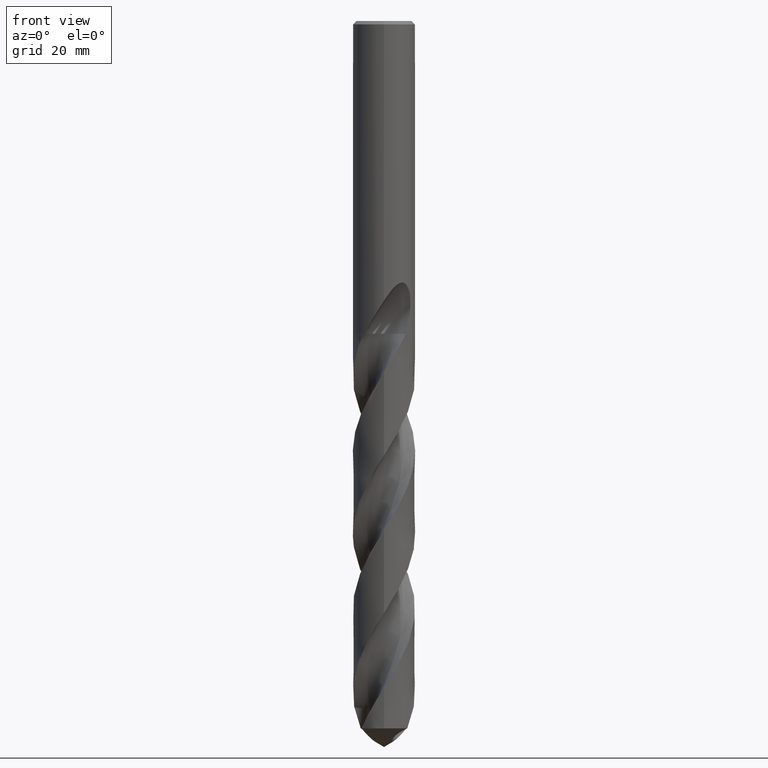
[diagram: clean part render]
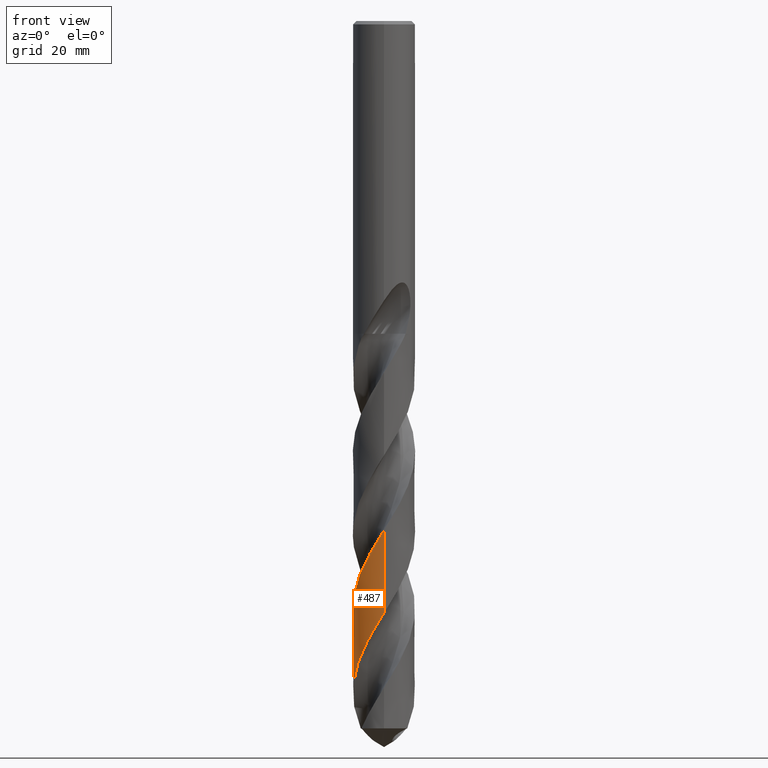
[diagram: same view with one face highlighted and labeled with its STEP entity id]
A machine part, front view. The second image highlights one B-rep face of the part: STEP entity #487.
In plain terms, the highlighted conical surface has half-angle 0 deg.
Its self-contained STEP definition (entity closure, byte-faithful):
#303=EDGE_CURVE('',#431,#465,#783,.T.);
#343=EDGE_CURVE('',#397,#647,#825,.T.);
#355=VERTEX_POINT('',#838);
#397=VERTEX_POINT('',#884);
#431=VERTEX_POINT('',#922);
#435=EDGE_CURVE('',#431,#355,#926,.T.);
#465=VERTEX_POINT('',#959);
#487=ADVANCED_FACE('',(#982),#983,.T.);
#491=EDGE_CURVE('',#647,#355,#987,.T.);
#595=EDGE_CURVE('',#465,#397,#1103,.T.);
#647=VERTEX_POINT('',#1158);
#783=B_SPLINE_CURVE_WITH_KNOTS('',3,(#1532,#1533,#1534,#1535,#1536,#1537,#1538,#1539,#1540,#1541,#1542,#1543,#1544,#1545,#1546,#1547,#1548,#1549,#1550,#1551,#1552,#1553,#1554,#1555,#1556,#1557,#1558,#1559,#1560,#1561,#1562,#1563,#1564,#1565,#1566,#1567,#1568,#1569,#1570,#1571,#1572,#1573,#1574,#1575,#1576,#1577,#1578,#1579,#1580,#1581,#1582,#1583,#1584,#1585,#1586,#1587,#1588,#1589,#1590,#1591,#1592,#1593,#1594,#1595,#1596,#1597,#1598,#1599,#1600,#1601,#1602,#1603,#1604,#1605,#1606,#1607,#1608,#1609,#1610,#1611,#1612,#1613,#1614,#1615,#1616,#1617,#1618,#1619,#1620,#1621,#1622,#1623,#1624,#1625,#1626,#1627,#1628,#1629,#1630,#1631,#1632,#1633,#1634,#1635,#1636,#1637,#1638,#1639,#1640,#1641,#1642,#1643,#1644,#1645,#1646,#1647,#1648,#1649,#1650,#1651,#1652,#1653,#1654,#1655,#1656,#1657,#1658,#1659,#1660,#1661,#1662,#1663,#1664,#1665,#1666,#1667,#1668,#1669,#1670,#1671,#1672,#1673,#1674,#1675,#1676,#1677,#1678,#1679,#1680,#1681,#1682,#1683,#1684,#1685,#1686,#1687,#1688,#1689),.UNSPECIFIED.,.F.,.F.,(4,2,2,2,2,2,2,2,2,2,2,2,2,2,2,2,2,2,2,2,2,2,2,2,2,2,2,2,2,2,2,2,2,2,2,2,2,2,2,2,2,2,2,2,2,2,2,2,2,2,2,2,2,2,2,2,2,2,2,2,2,2,2,2,2,2,2,2,2,2,2,2,2,2,2,2,2,2,4),(0.0,1.77031661090371,2.20791597773964,5.46100718075468,5.57044829929917,7.32849604555577,8.21140103210814,9.97065885477952,11.6071752720234,14.1226464649664,15.31621813268,16.5735950531152,18.3084243680479,19.2434012358815,20.0001717011208,21.7072015279349,22.6634918575135,23.6807614741309,25.4434496202704,26.3267084186185,27.2041087133704,28.9661795445309,29.8492452323305,30.7266224060813,32.4882431680947,33.3711840762653,34.2486498042787,36.0101214156496,36.892946279999,37.7703157798834,39.5139284679548,40.4448355015305,41.3059487882303,44.316967328908,44.4245802771193,46.3211489845122,47.2274198363686,48.4817298673622,50.2674907124125,52.0301826040099,53.8102566076103,56.3292907574294,57.5918130280833,58.8506014418418,60.4711646466708,61.4273737591509,62.6822182834488,64.1963671751367,66.2754502045075,67.7055193087533,69.8151690289709,72.5190421363892,72.8154928816799,75.807993218345,76.6769931419695,78.4105082906779,80.3379462849762,81.8348020701586,83.8748824224301,85.5828402117059,86.399645842771,87.1486253097015,89.974672399131,90.5578191727638,92.2678940546003,93.0940816516135,94.9809087607285,97.9964083987883,102.310449342615,102.894356094695,103.735547238377,104.864527070445,105.581425084975,106.713919195996,107.578966176245,108.522563320781,110.093092980839,112.03798820592,117.056056201774),.UNSPECIFIED.);
#825=B_SPLINE_CURVE_WITH_KNOTS('',3,(#1955,#1956,#1957,#1958,#1959,#1960,#1961,#1962,#1963,#1964,#1965,#1966,#1967,#1968,#1969,#1970,#1971,#1972,#1973,#1974,#1975,#1976,#1977,#1978,#1979,#1980,#1981,#1982,#1983,#1984,#1985,#1986,#1987,#1988,#1989,#1990,#1991,#1992,#1993,#1994,#1995,#1996,#1997,#1998,#1999,#2000,#2001,#2002,#2003,#2004,#2005,#2006,#2007,#2008,#2009,#2010,#2011,#2012,#2013,#2014,#2015,#2016,#2017,#2018,#2019,#2020,#2021,#2022,#2023,#2024,#2025,#2026,#2027,#2028,#2029,#2030,#2031,#2032,#2033,#2034,#2035,#2036,#2037,#2038,#2039,#2040,#2041,#2042,#2043,#2044,#2045,#2046,#2047,#2048,#2049,#2050,#2051,#2052,#2053,#2054,#2055,#2056,#2057,#2058,#2059,#2060,#2061,#2062,#2063,#2064,#2065,#2066,#2067,#2068,#2069,#2070,#2071,#2072,#2073,#2074,#2075,#2076,#2077,#2078,#2079,#2080,#2081,#2082,#2083,#2084,#2085,#2086,#2087,#2088,#2089,#2090,#2091,#2092,#2093,#2094,#2095,#2096,#2097,#2098,#2099,#2100,#2101,#2102),.UNSPECIFIED.,.F.,.F.,(4,2,2,2,2,2,2,2,2,2,2,2,2,2,2,2,2,2,2,2,2,2,2,2,2,2,2,2,2,2,2,2,2,2,2,2,2,2,2,2,2,2,2,2,2,2,2,2,2,2,2,2,2,2,2,2,2,2,2,2,2,2,2,2,2,2,2,2,2,2,2,2,2,4),(0.0,0.361278859706694,0.51155579911378,0.572866162007056,0.614029059597023,0.682420343841701,1.57952066791953,1.84040718704467,1.99265953912856,2.12832221649181,2.29960421990024,2.48533632954587,2.80173898240548,3.84234106031695,4.39947393872738,4.92203250541809,5.45622284913372,8.05018007752597,9.12214029881324,13.6947303622383,14.1022155943221,15.8223417074524,18.2890869499448,19.5146255082088,20.1289691792168,21.3383131196243,23.7576795030091,24.8346879347643,27.2568311728865,27.8949781663482,29.8365769518536,30.4509064145506,31.6601105468229,34.0799109792505,35.1506316992267,37.5721562878431,38.2102082316801,40.1449359744086,40.7592649152998,41.9688717537168,44.3882183249406,45.4600693502129,47.880859775732,48.9299642243294,51.3529305569809,51.9908173376903,53.9712779754157,56.422205483029,57.6512901963238,60.0879100926499,61.3193998843844,62.5325175381007,64.9123121213484,66.0636792997669,68.4830099116609,69.5462326793949,71.9677321637822,72.6055190299489,74.565922188644,77.0183007208763,78.2468491877113,80.6845193497761,81.9154685195219,83.1299611963917,85.4437874189101,86.6532064265412,88.9244899026741,89.9238471716171,91.8016993168094,93.4634324324232,96.348504083274,96.4164152290568,98.5837894684428,105.146051238619),.UNSPECIFIED.);
#838=CARTESIAN_POINT('',(-8.88951325003088E-016,7.25,-164.64376051205));
#884=CARTESIAN_POINT('',(1.6430572421356E-014,-7.24994974277336,-118.485633632378));
#922=CARTESIAN_POINT('',(-5.41990999758816,4.81529600523622,-164.64376051205));
#926=CIRCLE('',#3111,7.25);
#959=CARTESIAN_POINT('',(-4.88570836258464E-015,-7.24997079218865,-137.818208198195));
#982=FACE_OUTER_BOUND('',#3246,.T.);
#983=CONICAL_SURFACE('',#3247,7.24995,1.08880559160692E-006);
#987=LINE('',#3254,#3255);
#1103=LINE('',#5701,#5702);
#1158=CARTESIAN_POINT('',(-2.84661569335026E-013,7.24998968622701,-155.171203519788));
#1532=CARTESIAN_POINT('',(-5.41990999758821,4.81529600523614,-164.64376051205));
#1533=CARTESIAN_POINT('',(-5.62699327304503,4.58221029904842,-164.142749419002));
#1534=CARTESIAN_POINT('',(-5.81847945481887,4.33639775600503,-163.642954985826));
#1535=CARTESIAN_POINT('',(-6.03655625538813,4.01601333732255,-163.01729189605));
#1536=CARTESIAN_POINT('',(-6.07873563781129,3.95187998592214,-162.893228652834));
#1537=CARTESIAN_POINT('',(-6.42635111266323,3.40456690927933,-161.846719184443));
#1538=CARTESIAN_POINT('',(-6.67453028521408,2.88779971633289,-160.933995037363));
#1539=CARTESIAN_POINT('',(-6.86569831994796,2.32915913311488,-159.980768202413));
#1540=CARTESIAN_POINT('',(-6.87184968426259,2.3109475734532,-159.949731889412));
#1541=CARTESIAN_POINT('',(-6.97576900201816,1.9991920205301,-159.419307594763));
#1542=CARTESIAN_POINT('',(-7.0548227299595,1.69942190601023,-158.921502871733));
#1543=CARTESIAN_POINT('',(-7.14445778929814,1.24232470843622,-158.172130659067));
#1544=CARTESIAN_POINT('',(-7.16948251188292,1.08863724803519,-157.921761715567));
#1545=CARTESIAN_POINT('',(-7.22949671343645,0.62682410846914,-157.171851040599));
#1546=CARTESIAN_POINT('',(-7.24968515509135,0.317195303721862,-156.671424629789));
#1547=CARTESIAN_POINT('',(-7.25026840732717,-0.281405076912002,-155.707623254773));
#1548=CARTESIAN_POINT('',(-7.2333314002822,-0.569662468547954,-155.244346085743));
#1549=CARTESIAN_POINT('',(-7.14688476732872,-1.29655454753451,-154.066045907784));
#1550=CARTESIAN_POINT('',(-7.05422305503109,-1.73121060603778,-153.351100478092));
#1551=CARTESIAN_POINT('',(-6.85979204674697,-2.35581692054264,-152.29868014696));
#1552=CARTESIAN_POINT('',(-6.78852218319272,-2.55392156929445,-151.960433134667));
#1553=CARTESIAN_POINT('',(-6.62476148686887,-2.9536300383809,-151.264799502703));
#1554=CARTESIAN_POINT('',(-6.53146384340517,-3.15456019693202,-150.907233668669));
#1555=CARTESIAN_POINT('',(-6.28802900220942,-3.6216313747501,-150.058148221076));
#1556=CARTESIAN_POINT('',(-6.12983383751524,-3.88341349551009,-149.567343381603));
#1557=CARTESIAN_POINT('',(-5.86146708154155,-4.26996629676195,-148.810194312494));
#1558=CARTESIAN_POINT('',(-5.7629648711534,-4.40199498414703,-148.545196027072));
#1559=CARTESIAN_POINT('',(-5.57690596264787,-4.63444686988805,-148.065148280877));
#1560=CARTESIAN_POINT('',(-5.49089074718107,-4.73604123282266,-147.850158671098));
#1561=CARTESIAN_POINT('',(-5.20174604179516,-5.05907978670999,-147.151062536054));
#1562=CARTESIAN_POINT('',(-4.98754243358416,-5.27040417390374,-146.668120007608));
#1563=CARTESIAN_POINT('',(-4.63350215056367,-5.57864421470198,-145.912951219529));
#1564=CARTESIAN_POINT('',(-4.5026402288715,-5.68478388020949,-145.641982444792));
#1565=CARTESIAN_POINT('',(-4.22537597482581,-5.89410340302535,-145.082117710719));
#1566=CARTESIAN_POINT('',(-4.07860909215833,-5.99659849602072,-144.793072878394));
#1567=CARTESIAN_POINT('',(-3.66734968577883,-6.26170717841511,-144.004447306303));
#1568=CARTESIAN_POINT('',(-3.39592134125257,-6.41298391139254,-143.505944246765));
#1569=CARTESIAN_POINT('',(-2.97491346061146,-6.61334021389843,-142.755730192472));
#1570=CARTESIAN_POINT('',(-2.83236186698589,-6.67562946430729,-142.505422367853));
#1571=CARTESIAN_POINT('',(-2.54465360765079,-6.79048697016203,-142.00592927553));
#1572=CARTESIAN_POINT('',(-2.39955713135423,-6.84310757416729,-141.756679018276));
#1573=CARTESIAN_POINT('',(-1.95790563389318,-6.98748544640886,-141.007696875985));
#1574=CARTESIAN_POINT('',(-1.657016683139,-7.06490402907035,-140.509231192494));
#1575=CARTESIAN_POINT('',(-1.19897937925582,-7.15183755439245,-139.759055175953));
#1576=CARTESIAN_POINT('',(-1.04528208874659,-7.17590710119558,-139.508739776697));
#1577=CARTESIAN_POINT('',(-0.73779972430544,-7.21398578183274,-139.009187648718));
#1578=CARTESIAN_POINT('',(-0.584068599802099,-7.22805776619327,-138.759882894393));
#1579=CARTESIAN_POINT('',(-0.120239207305004,-7.2556065184,-138.010886527345));
#1580=CARTESIAN_POINT('',(0.190429745540801,-7.25412012354647,-137.512451432116));
#1581=CARTESIAN_POINT('',(0.655541533383321,-7.22194949814573,-136.762309809323));
#1582=CARTESIAN_POINT('',(0.810332877711616,-7.2062179636167,-136.511988612989));
#1583=CARTESIAN_POINT('',(1.1174900561711,-7.16499309707849,-136.012369327802));
#1584=CARTESIAN_POINT('',(1.26981099797079,-7.13957283859403,-135.763001060918));
#1585=CARTESIAN_POINT('',(1.72550287176213,-7.04846722436819,-135.013940893408));
#1586=CARTESIAN_POINT('',(2.02563694392435,-6.9681618372477,-134.515492711724));
#1587=CARTESIAN_POINT('',(2.46736159160182,-6.81897124438584,-133.765337704848));
#1588=CARTESIAN_POINT('',(2.61308833752431,-6.7644614091396,-133.51501917367));
#1589=CARTESIAN_POINT('',(2.89971887803056,-6.64661520510339,-133.015398305597));
#1590=CARTESIAN_POINT('',(3.04059072323481,-6.58336352252899,-132.76602142987));
#1591=CARTESIAN_POINT('',(3.45538317589842,-6.38095502555467,-132.021996599707));
#1592=CARTESIAN_POINT('',(3.72266135112559,-6.22882737605844,-131.528534933702));
#1593=CARTESIAN_POINT('',(4.11684678501242,-5.96996485707966,-130.769755985933));
#1594=CARTESIAN_POINT('',(4.25084692146237,-5.87529771677018,-130.505806466768));
#1595=CARTESIAN_POINT('',(4.50221694985081,-5.68462667587729,-129.997104745018));
#1596=CARTESIAN_POINT('',(4.62003727541749,-5.58929369340432,-129.752334161));
#1597=CARTESIAN_POINT('',(5.13645666513937,-5.1439234024327,-128.652980372058));
#1598=CARTESIAN_POINT('',(5.49861962044273,-4.75474868402443,-127.805254379464));
#1599=CARTESIAN_POINT('',(5.82625285400966,-4.31474685711256,-126.919659889159));
#1600=CARTESIAN_POINT('',(5.8374955410628,-4.29952428139714,-126.889104081226));
#1601=CARTESIAN_POINT('',(6.04610530827506,-4.01473589361233,-126.319290650471));
#1602=CARTESIAN_POINT('',(6.22487446606462,-3.73161550037333,-125.782022317504));
#1603=CARTESIAN_POINT('',(6.45946160462684,-3.29588125260122,-124.985964653836));
#1604=CARTESIAN_POINT('',(6.530591255685,-3.15258645223434,-124.728729489254));
#1605=CARTESIAN_POINT('',(6.6886629981961,-2.80581481377529,-124.114856560306));
#1606=CARTESIAN_POINT('',(6.77110683799557,-2.60055127109336,-123.757781490474));
#1607=CARTESIAN_POINT('',(6.9479226656223,-2.09459503913744,-122.89408179981));
#1608=CARTESIAN_POINT('',(7.03236168919936,-1.79081612911861,-122.388336321414));
#1609=CARTESIAN_POINT('',(7.1603894785865,-1.17787560123632,-121.380645799977));
#1610=CARTESIAN_POINT('',(7.20428138728907,-0.869838608522571,-120.879050007368));
#1611=CARTESIAN_POINT('',(7.25251482735947,-0.247415641941758,-119.872988730389));
#1612=CARTESIAN_POINT('',(7.25643960734935,0.0667033878348549,-119.369072760437));
#1613=CARTESIAN_POINT('',(7.21666754280617,0.823948193313183,-118.148776158509));
#1614=CARTESIAN_POINT('',(7.15264296816341,1.26448098373004,-117.432490586929));
#1615=CARTESIAN_POINT('',(6.9965444183696,1.91303541179188,-116.359158370383));
#1616=CARTESIAN_POINT('',(6.93448951502465,2.1270040694643,-116.001334014218));
#1617=CARTESIAN_POINT('',(6.79113508028543,2.54783662402114,-115.285600571284));
#1618=CARTESIAN_POINT('',(6.71000504918321,2.75438201123293,-114.92762544078));
#1619=CARTESIAN_POINT('',(6.50335788562863,3.21704394040313,-114.110555512973));
#1620=CARTESIAN_POINT('',(6.3716987389487,3.47055476431907,-113.651917457639));
#1621=CARTESIAN_POINT('',(6.13890070222524,3.86056876610754,-112.921223586123));
#1622=CARTESIAN_POINT('',(6.04754052143152,4.00215906209158,-112.650259316632));
#1623=CARTESIAN_POINT('',(5.82521741335165,4.32172707804858,-112.022996677855));
#1624=CARTESIAN_POINT('',(5.69089669500582,4.4971295192395,-111.666318411108));
#1625=CARTESIAN_POINT('',(5.37710388667085,4.87026484888705,-110.880750596725));
#1626=CARTESIAN_POINT('',(5.19430823661504,5.06478292254021,-110.452174463573));
#1627=CARTESIAN_POINT('',(4.73579807675083,5.50164733673073,-109.433223230649));
#1628=CARTESIAN_POINT('',(4.45187073152686,5.73379841976278,-108.842559344058));
#1629=CARTESIAN_POINT('',(3.94540554454391,6.08759115624878,-107.847330599272));
#1630=CARTESIAN_POINT('',(3.73154750022944,6.22098501184152,-107.44258496824));
#1631=CARTESIAN_POINT('',(3.1858196913886,6.52306175129774,-106.439087409362));
#1632=CARTESIAN_POINT('',(2.84739277861808,6.67771007595395,-105.839936804827));
#1633=CARTESIAN_POINT('',(2.05205580533093,6.96972875037833,-104.475130072016));
#1634=CARTESIAN_POINT('',(1.59054731853639,7.08925158223187,-103.713625317776));
#1635=CARTESIAN_POINT('',(1.06961713619164,7.17078503261022,-102.862556099199));
#1636=CARTESIAN_POINT('',(1.01807102518428,7.17828508082544,-102.778438106447));
#1637=CARTESIAN_POINT('',(0.444406699952836,7.2554378275673,-101.844473821976));
#1638=CARTESIAN_POINT('',(-0.0836470303756538,7.26856223788009,-101.001940096669));
#1639=CARTESIAN_POINT('',(-0.761002609779011,7.2115014963669,-99.9058505164459));
#1640=CARTESIAN_POINT('',(-0.91298858015368,7.19384168122829,-99.6587633467178));
#1641=CARTESIAN_POINT('',(-1.3664585382558,7.12653487389445,-98.9198249817804));
#1642=CARTESIAN_POINT('',(-1.66555408125014,7.06263850066308,-98.4290997834571));
#1643=CARTESIAN_POINT('',(-2.28719943271725,6.88808532203409,-97.3902189665249));
#1644=CARTESIAN_POINT('',(-2.60740937670972,6.77333746968266,-96.8422401698719));
#1645=CARTESIAN_POINT('',(-3.15953402211276,6.53056433891531,-95.8704582385813));
#1646=CARTESIAN_POINT('',(-3.39503248297503,6.41130376605243,-95.4466226477335));
#1647=CARTESIAN_POINT('',(-3.93516953224021,6.09960789609596,-94.4433213374731));
#1648=CARTESIAN_POINT('',(-4.23271196985305,5.89699453488135,-93.8636083343901));
#1649=CARTESIAN_POINT('',(-4.74910426310224,5.4861462034385,-92.8003328832429));
#1650=CARTESIAN_POINT('',(-4.97263993434307,5.28439142037383,-92.3172054689264));
#1651=CARTESIAN_POINT('',(-5.28372060260614,4.9663226283406,-91.6012500489434));
#1652=CARTESIAN_POINT('',(-5.38120140506886,4.86052175302723,-91.3697184816797));
#1653=CARTESIAN_POINT('',(-5.56178906450381,4.65244101942313,-90.9254560930535));
#1654=CARTESIAN_POINT('',(-5.64538448620451,4.55064126949869,-90.7127050346489));
#1655=CARTESIAN_POINT('',(-6.03120692673163,4.05378153306371,-89.6983070281936));
#1656=CARTESIAN_POINT('',(-6.29493293102438,3.6307475601856,-88.9024421520444));
#1657=CARTESIAN_POINT('',(-6.55835249077487,3.0918970406205,-87.9352833616824));
#1658=CARTESIAN_POINT('',(-6.60141477271757,2.99885418397293,-87.7697178566995));
#1659=CARTESIAN_POINT('',(-6.7630035124094,2.62935380188236,-87.1192680221507));
#1660=CARTESIAN_POINT('',(-6.86634636046392,2.34634405141402,-86.6357040549131));
#1661=CARTESIAN_POINT('',(-6.99315618616786,1.91786643224664,-85.9168905270771));
#1662=CARTESIAN_POINT('',(-7.03023144651049,1.77714537625725,-85.6828566598473));
#1663=CARTESIAN_POINT('',(-7.13795245978279,1.31193299651807,-84.9136604138111));
#1664=CARTESIAN_POINT('',(-7.1905579366623,0.983637734466338,-84.3773129628534));
#1665=CARTESIAN_POINT('',(-7.26828540251517,0.123725184993744,-82.9873609720115));
#1666=CARTESIAN_POINT('',(-7.25781905769516,-0.408730584361562,-82.1369199733049));
#1667=CARTESIAN_POINT('',(-7.09138554576849,-1.68824512847053,-80.0578178803582));
#1668=CARTESIAN_POINT('',(-6.8750324568909,-2.42746480443043,-78.8146468833672));
#1669=CARTESIAN_POINT('',(-6.4967495663067,-3.21936553370304,-77.4314643706193));
#1670=CARTESIAN_POINT('',(-6.45086577371,-3.31032095829988,-77.272399153346));
#1671=CARTESIAN_POINT('',(-6.33199377759163,-3.53402438595699,-76.8717381220286));
#1672=CARTESIAN_POINT('',(-6.25874113798091,-3.66201495258345,-76.6348741259543));
#1673=CARTESIAN_POINT('',(-6.08115314128162,-3.95204450763828,-76.074835388631));
#1674=CARTESIAN_POINT('',(-5.97653782008128,-4.1078658434814,-75.7544292780188));
#1675=CARTESIAN_POINT('',(-5.80367626344254,-4.34643791765821,-75.2317759087448));
#1676=CARTESIAN_POINT('',(-5.7547073841612,-4.40967188784136,-75.084643613184));
#1677=CARTESIAN_POINT('',(-5.71074626987132,-4.46658711479677,-74.9542094417476));
#1678=CARTESIAN_POINT('',(-5.68295552053725,-4.50191196416565,-74.8749412241827));
#1679=CARTESIAN_POINT('',(-5.63221932863264,-4.56513069623502,-74.7359911462363));
#1680=CARTESIAN_POINT('',(-5.60970560774511,-4.59277647041576,-74.6761765540406));
#1681=CARTESIAN_POINT('',(-5.56141796644721,-4.65115794679134,-74.5517821674768));
#1682=CARTESIAN_POINT('',(-5.53555869745799,-4.68191598441121,-74.4873274706162));
#1683=CARTESIAN_POINT('',(-5.46476126045895,-4.76467067692538,-74.3166555624502));
#1684=CARTESIAN_POINT('',(-5.41851731023172,-4.81724083576362,-74.2110850759705));
#1685=CARTESIAN_POINT('',(-5.31148998191956,-4.93527233962555,-73.979271319748));
#1686=CARTESIAN_POINT('',(-5.24937401322947,-5.00138484064661,-73.8530181285385));
#1687=CARTESIAN_POINT('',(-5.01578456582505,-5.24032018698631,-73.4072253760197));
#1688=CARTESIAN_POINT('',(-4.82851895156844,-5.41477854247367,-73.1011658860984));
#1689=CARTESIAN_POINT('',(-4.6197685579524,-5.587377610283,-72.805));
#1955=CARTESIAN_POINT('',(-5.03924001636974,5.21220779961383,-72.805));
#1956=CARTESIAN_POINT('',(-4.99581604627358,5.25419089748525,-72.9091838222133));
#1957=CARTESIAN_POINT('',(-4.95172797921312,5.29576833303587,-73.0133916869377));
#1958=CARTESIAN_POINT('',(-4.88816240645585,5.35421025292198,-73.1607995317797));
#1959=CARTESIAN_POINT('',(-4.86936391496193,5.37131280269299,-73.2040545314618));
#1960=CARTESIAN_POINT('',(-4.84268906097492,5.3953246577986,-73.2649265181066));
#1961=CARTESIAN_POINT('',(-4.8349370595901,5.40227265914607,-73.2825572113884));
#1962=CARTESIAN_POINT('',(-4.82194003280571,5.41387120066486,-73.3120157232417));
#1963=CARTESIAN_POINT('',(-4.81670875250686,5.41852601598719,-73.3238455273888));
#1964=CARTESIAN_POINT('',(-4.80275667785379,5.43090440399457,-73.3553229752945));
#1965=CARTESIAN_POINT('',(-4.79401801129467,5.43861992374878,-73.3749626130378));
#1966=CARTESIAN_POINT('',(-4.67021383857098,5.54739710174648,-73.6521179350981));
#1967=CARTESIAN_POINT('',(-4.55232427022055,5.64468271565951,-73.9026331628638));
#1968=CARTESIAN_POINT('',(-4.39059606013082,5.76938955033711,-74.2298146456142));
#1969=CARTESIAN_POINT('',(-4.35377521936937,5.79722961818922,-74.3033045568239));
#1970=CARTESIAN_POINT('',(-4.29469538508556,5.84101031392118,-74.4197905432292));
#1971=CARTESIAN_POINT('',(-4.27279791711024,5.85704822872771,-74.4626622199627));
#1972=CARTESIAN_POINT('',(-4.23113349693557,5.88720427553908,-74.5437160165049));
#1973=CARTESIAN_POINT('',(-4.21140876803123,5.90133074314776,-74.5818721629153));
#1974=CARTESIAN_POINT('',(-4.16655976058461,5.93311049043867,-74.6681920694525));
#1975=CARTESIAN_POINT('',(-4.1413992565939,5.9507005334441,-74.7163111422702));
#1976=CARTESIAN_POINT('',(-4.08866978882673,5.98706703219769,-74.816622187698));
#1977=CARTESIAN_POINT('',(-4.06110169836209,6.00580111208878,-74.8687677237328));
#1978=CARTESIAN_POINT('',(-3.98621019609669,6.0559423973794,-75.0098093418294));
#1979=CARTESIAN_POINT('',(-3.93806905625937,6.08737033759212,-75.0997938638363));
#1980=CARTESIAN_POINT('',(-3.72766004078481,6.22110878150233,-75.4928136648703));
#1981=CARTESIAN_POINT('',(-3.56360078410893,6.31642712290874,-75.7970098103385));
#1982=CARTESIAN_POINT('',(-3.30838310193294,6.45181018339877,-76.2633169406579));
#1983=CARTESIAN_POINT('',(-3.21851140194297,6.49710665238622,-76.4262340144793));
#1984=CARTESIAN_POINT('',(-3.04278070813817,6.58114625152786,-76.7417150127211));
#1985=CARTESIAN_POINT('',(-2.95689444298414,6.62018111022897,-76.8945190586347));
#1986=CARTESIAN_POINT('',(-2.78162378245533,6.69574474363156,-77.2032178812425));
#1987=CARTESIAN_POINT('',(-2.69234413781893,6.73214193512392,-77.358771487934));
#1988=CARTESIAN_POINT('',(-2.1644051768872,6.93516279862914,-78.2705445035082));
#1989=CARTESIAN_POINT('',(-1.71116543409694,7.06069933206811,-79.0219638598703));
#1990=CARTESIAN_POINT('',(-1.05758349877575,7.17497903074472,-80.0906392115122));
#1991=CARTESIAN_POINT('',(-0.865297902443132,7.20069418790027,-80.4033173183755));
#1992=CARTESIAN_POINT('',(0.150903013181578,7.29533983765481,-82.0490302203485));
#1993=CARTESIAN_POINT('',(0.981546234031994,7.23066668130614,-83.370064180736));
#1994=CARTESIAN_POINT('',(1.85508981868089,7.00894567802344,-84.8214622194413));
#1995=CARTESIAN_POINT('',(1.92627479611942,6.98971691815413,-84.9402079946844));
#1996=CARTESIAN_POINT('',(2.2963278233918,6.88367550142212,-85.5603564474529));
#1997=CARTESIAN_POINT('',(2.58969209407894,6.77876287109397,-86.0615251189145));
#1998=CARTESIAN_POINT('',(3.28513979970444,6.47829852174904,-87.2819121050208));
#1999=CARTESIAN_POINT('',(3.67763631858769,6.26382283801082,-87.998729303731));
#2000=CARTESIAN_POINT('',(4.2318622965258,5.89082479061257,-89.0749723734075));
#2001=CARTESIAN_POINT('',(4.41006280902925,5.75863240627606,-89.4320471512279));
#2002=CARTESIAN_POINT('',(4.66809884298662,5.54820102953878,-89.9683040330851));
#2003=CARTESIAN_POINT('',(4.75263637698856,5.47595975346652,-90.1473294158383));
#2004=CARTESIAN_POINT('',(4.99857239758875,5.25580791475587,-90.6788372116093));
#2005=CARTESIAN_POINT('',(5.15493440380307,5.10253545836151,-91.0310068034828));
#2006=CARTESIAN_POINT('',(5.6025289911086,4.62219069470859,-92.0887545412929));
#2007=CARTESIAN_POINT('',(5.87140030222735,4.27548883505711,-92.7927591640744));
#2008=CARTESIAN_POINT('',(6.21242268500433,3.74235100235697,-93.8117953048416));
#2009=CARTESIAN_POINT('',(6.31078168691265,3.57398912594658,-94.1255105906281));
#2010=CARTESIAN_POINT('',(6.60787563582089,3.01487359310826,-95.1455379168791));
#2011=CARTESIAN_POINT('',(6.77805286988506,2.60991349063024,-95.8503448342748));
#2012=CARTESIAN_POINT('',(6.94554182268031,2.08187906526371,-96.7423206230298));
#2013=CARTESIAN_POINT('',(6.97782646200106,1.97096612256569,-96.9282491267993));
#2014=CARTESIAN_POINT('',(7.09756648087866,1.51969432990009,-97.6802517934584));
#2015=CARTESIAN_POINT('',(7.16287883637288,1.17393092773397,-98.2458468213021));
#2016=CARTESIAN_POINT('',(7.21550874266645,0.714325119837765,-98.9909167836986));
#2017=CARTESIAN_POINT('',(7.22561659527156,0.603571414238258,-99.1699641173676));
#2018=CARTESIAN_POINT('',(7.24804712509513,0.274230956792644,-99.701502627256));
#2019=CARTESIAN_POINT('',(7.25302038309294,0.0553204670253087,-100.053672162417));
#2020=CARTESIAN_POINT('',(7.23821555883445,-0.601242135659126,-101.111652099192));
#2021=CARTESIAN_POINT('',(7.18869651759082,-1.03733164528552,-101.815878528183));
#2022=CARTESIAN_POINT('',(7.06088932032401,-1.65618228999425,-102.833359851084));
#2023=CARTESIAN_POINT('',(7.01409521228084,-1.84432729221697,-103.145295028754));
#2024=CARTESIAN_POINT('',(6.83710830643501,-2.45102683825096,-104.163461456891));
#2025=CARTESIAN_POINT('',(6.67646807936147,-2.85981194778138,-104.868194740833));
#2026=CARTESIAN_POINT('',(6.42803473305766,-3.35488948845506,-105.760094335884));
#2027=CARTESIAN_POINT('',(6.37377256809534,-3.45686783258059,-105.946022048167));
#2028=CARTESIAN_POINT('',(6.14525894091293,-3.86264415388963,-106.69610497092));
#2029=CARTESIAN_POINT('',(5.95152348695885,-4.15495124891166,-107.259788946125));
#2030=CARTESIAN_POINT('',(5.66943698288445,-4.52011690790683,-108.002967737481));
#2031=CARTESIAN_POINT('',(5.59943205438413,-4.6065540390849,-108.182041966943));
#2032=CARTESIAN_POINT('',(5.3857484964722,-4.85832181549643,-108.713777477023));
#2033=CARTESIAN_POINT('',(5.23656977039341,-5.01875391656862,-109.066114619733));
#2034=CARTESIAN_POINT('',(4.76798915137438,-5.47902043057317,-110.124234109759));
#2035=CARTESIAN_POINT('',(4.42837243232449,-5.75700105794281,-110.828432618503));
#2036=CARTESIAN_POINT('',(3.90499535614162,-6.11149263490254,-111.846259658514));
#2037=CARTESIAN_POINT('',(3.74003884618134,-6.21380860810986,-112.158566602561));
#2038=CARTESIAN_POINT('',(3.18989554673805,-6.52519990945399,-113.176997572836));
#2039=CARTESIAN_POINT('',(2.78972066430062,-6.70606379750654,-113.881627111594));
#2040=CARTESIAN_POINT('',(2.19611529343869,-6.91193730514929,-114.893289895508));
#2041=CARTESIAN_POINT('',(2.01430146314306,-6.96709174187566,-115.199006870001));
#2042=CARTESIAN_POINT('',(1.40621163748265,-7.12577303046562,-116.211481907959));
#2043=CARTESIAN_POINT('',(0.972590182992908,-7.19779932711892,-116.916732897157));
#2044=CARTESIAN_POINT('',(0.419845086830261,-7.23870380569896,-117.809163920026));
#2045=CARTESIAN_POINT('',(0.304481001230912,-7.24447316935236,-117.995080225288));
#2046=CARTESIAN_POINT('',(-0.169389203911473,-7.2568339379797,-118.758592015469));
#2047=CARTESIAN_POINT('',(-0.528039346841765,-7.23958151107658,-119.335660799834));
#2048=CARTESIAN_POINT('',(-1.32440101553947,-7.14175710464422,-120.627859352792));
#2049=CARTESIAN_POINT('',(-1.75890287847948,-7.0473326820908,-121.340783359095));
#2050=CARTESIAN_POINT('',(-2.3941416562573,-6.84685442091232,-122.413992886638));
#2051=CARTESIAN_POINT('',(-2.60314360389516,-6.77015585152207,-122.772244692796));
#2052=CARTESIAN_POINT('',(-3.21506970023462,-6.51305121226236,-123.84115219932));
#2053=CARTESIAN_POINT('',(-3.60532254671111,-6.30539953381028,-124.550162421132));
#2054=CARTESIAN_POINT('',(-4.16066826443632,-5.94141550818142,-125.6198903619));
#2055=CARTESIAN_POINT('',(-4.34140994981467,-5.81066071873648,-125.978814517899));
#2056=CARTESIAN_POINT('',(-4.68771993453835,-5.53492897042371,-126.691638696605));
#2057=CARTESIAN_POINT('',(-4.85323865029334,-5.39038139503658,-127.045045208675));
#2058=CARTESIAN_POINT('',(-5.32322158258167,-4.94073298600985,-128.092847547722));
#2059=CARTESIAN_POINT('',(-5.60741292116656,-4.61568997842271,-128.785762122362));
#2060=CARTESIAN_POINT('',(-5.98381045767622,-4.09871186526468,-129.815445323331));
#2061=CARTESIAN_POINT('',(-6.09918526147339,-3.92496383630667,-130.150935092965));
#2062=CARTESIAN_POINT('',(-6.43323385780115,-3.37154335527508,-131.192324726062));
#2063=CARTESIAN_POINT('',(-6.62517162765185,-2.9767539051058,-131.89668161394));
#2064=CARTESIAN_POINT('',(-6.84848746615353,-2.3869009724986,-132.912235020797));
#2065=CARTESIAN_POINT('',(-6.90945047989999,-2.20421147830037,-133.222114873564));
#2066=CARTESIAN_POINT('',(-7.08516857843968,-1.59830772669758,-134.238481372397));
#2067=CARTESIAN_POINT('',(-7.16886018116285,-1.16696904101727,-134.943463817357));
#2068=CARTESIAN_POINT('',(-7.22469998887933,-0.615709628372869,-135.835619413985));
#2069=CARTESIAN_POINT('',(-7.23359154111515,-0.500539154343064,-136.021542588731));
#2070=CARTESIAN_POINT('',(-7.25859025367842,-0.0307259376881626,-136.779326505938));
#2071=CARTESIAN_POINT('',(-7.25139183215697,0.324689862327168,-137.350684556986));
#2072=CARTESIAN_POINT('',(-7.17664375263386,1.12031670267069,-138.637719329216));
#2073=CARTESIAN_POINT('',(-7.09456658483542,1.5576783924915,-139.35117698801));
#2074=CARTESIAN_POINT('',(-6.91212967238708,2.19864843461895,-140.424863153787));
#2075=CARTESIAN_POINT('',(-6.84141723371355,2.40969673623124,-140.783031151174));
#2076=CARTESIAN_POINT('',(-6.60172898981442,3.0288966616775,-141.852300079783));
#2077=CARTESIAN_POINT('',(-6.40510791887029,3.42513245074535,-142.561724158086));
#2078=CARTESIAN_POINT('',(-6.05687881922514,3.99074644064382,-143.63181746032));
#2079=CARTESIAN_POINT('',(-5.93132737078381,4.17507284578048,-143.990660490519));
#2080=CARTESIAN_POINT('',(-5.66537888304395,4.52924396886679,-144.703873275393));
#2081=CARTESIAN_POINT('',(-5.52538345716655,4.69900927176943,-145.057742893696));
#2082=CARTESIAN_POINT('',(-5.09692962144699,5.17291475455932,-146.086909749214));
#2083=CARTESIAN_POINT('',(-4.78949137098632,5.45881294846139,-146.760852068253));
#2084=CARTESIAN_POINT('',(-4.28629972095914,5.85131242449718,-147.788440102784));
#2085=CARTESIAN_POINT('',(-4.10758334523941,5.97812325381922,-148.140873086298));
#2086=CARTESIAN_POINT('',(-3.57758009295136,6.31920260829857,-149.156210440168));
#2087=CARTESIAN_POINT('',(-3.21335503008306,6.51197982577072,-149.817788064616));
#2088=CARTESIAN_POINT('',(-2.66807492935182,6.74362117466505,-150.771743025855));
#2089=CARTESIAN_POINT('',(-2.49889676183407,6.80812407420811,-151.063019604519));
#2090=CARTESIAN_POINT('',(-2.00543238461147,6.97539860497504,-151.902338381138));
#2091=CARTESIAN_POINT('',(-1.67605474146026,7.06178642697649,-152.449734914612));
#2092=CARTESIAN_POINT('',(-1.0460401323352,7.18043932094178,-153.482252059511));
#2093=CARTESIAN_POINT('',(-0.747114687968002,7.21766634901877,-153.966196802111));
#2094=CARTESIAN_POINT('',(0.0747088061006305,7.26840683498391,-155.292628898934));
#2095=CARTESIAN_POINT('',(0.598251949106328,7.24414564618792,-156.132053680928));
#2096=CARTESIAN_POINT('',(1.12686583686023,7.16189248523749,-156.993409871812));
#2097=CARTESIAN_POINT('',(1.13901727529004,7.1599700091065,-157.013218649059));
#2098=CARTESIAN_POINT('',(1.53881751304416,7.09567420921129,-157.665254383171));
#2099=CARTESIAN_POINT('',(1.92073800006461,7.00194890082996,-158.297013615672));
#2100=CARTESIAN_POINT('',(3.42079118001786,6.50180845284783,-160.84375295717));
#2101=CARTESIAN_POINT('',(4.43863894853502,5.8543015148,-162.729013018319));
#2102=CARTESIAN_POINT('',(5.25691777890332,4.99272625584962,-164.64376051205));
#3111=AXIS2_PLACEMENT_3D('',#7320,#7321,#7322);
#3246=EDGE_LOOP('',(#7394,#7395,#7396,#7397,#7398));
#3247=AXIS2_PLACEMENT_3D('',#7399,#7400,#7401);
#3254=CARTESIAN_POINT('',(-8.88945201971319E-016,7.24995,-118.721880256025));
#3255=VECTOR('',#7403,1.0);
#5701=CARTESIAN_POINT('',(8.8672176500759E-016,-7.24995,-118.721880256025));
#5702=VECTOR('',#7541,1.0);
#7320=CARTESIAN_POINT('',(0.0,0.0,-164.64376051205));
#7321=DIRECTION('',(0.0,0.0,-1.0));
#7322=DIRECTION('',(0.0,1.0,0.0));
#7394=ORIENTED_EDGE('',*,*,#491,.T.);
#7395=ORIENTED_EDGE('',*,*,#435,.F.);
#7396=ORIENTED_EDGE('',*,*,#303,.T.);
#7397=ORIENTED_EDGE('',*,*,#595,.T.);
#7398=ORIENTED_EDGE('',*,*,#343,.T.);
#7399=CARTESIAN_POINT('',(0.0,0.0,-118.721880256025));
#7400=DIRECTION('',(0.0,-0.0,-1.0));
#7401=DIRECTION('',(0.0,1.0,0.0));
#7403=DIRECTION('',(-1.33335824555891E-022,1.08880559160671E-006,-0.999999999999407));
#7541=DIRECTION('',(-1.33335824555891E-022,1.08880559160671E-006,0.999999999999407));